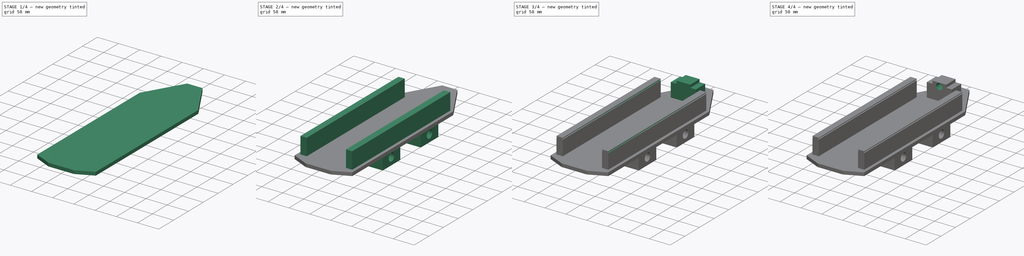
[diagram: build sequence overview — one tinted view per stage of 4, left to right]
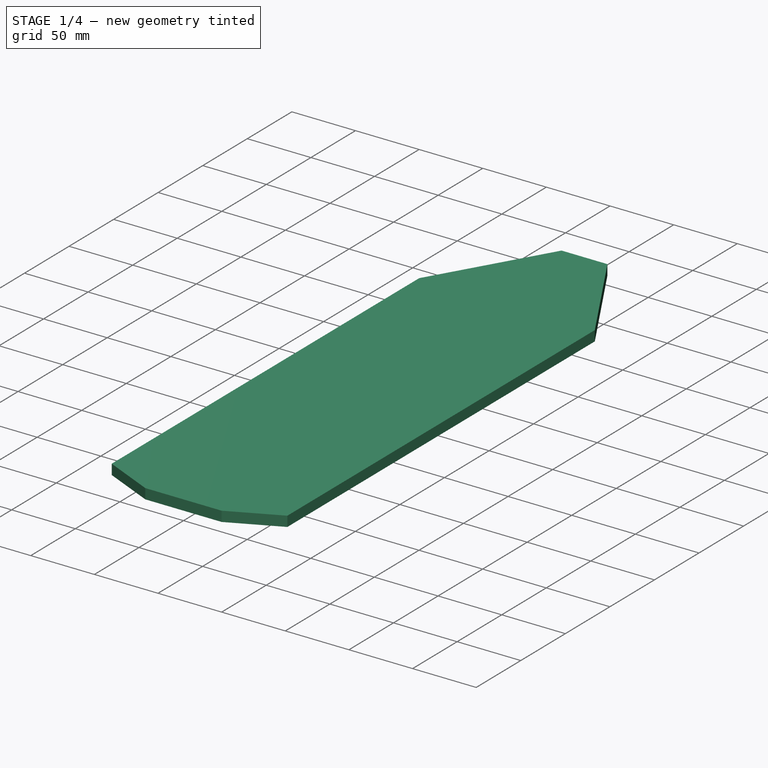
[diagram: stage 1 of 4 — iso view after this stage's code; geometry added in this stage tinted green]
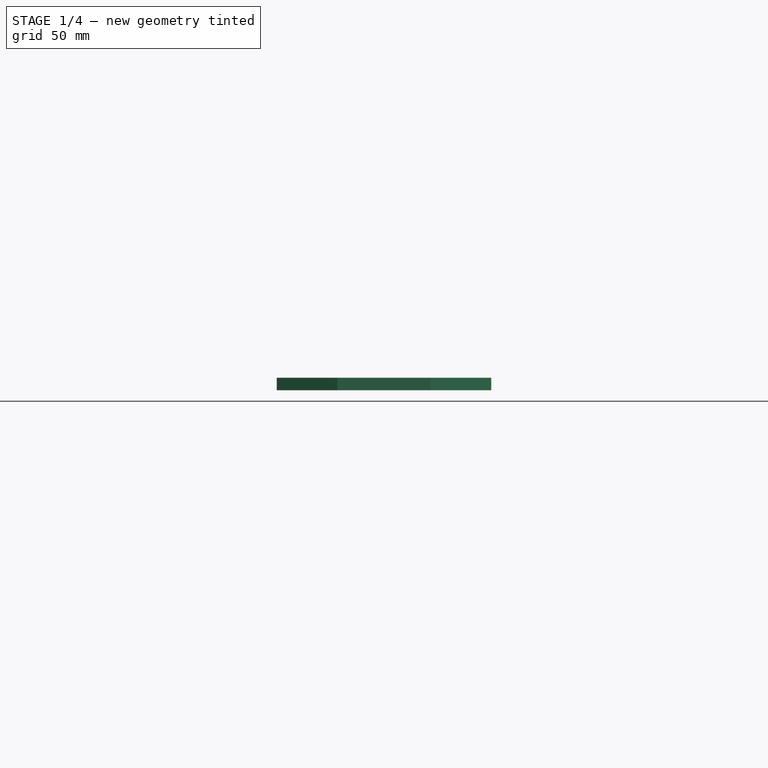
[diagram: stage 1 of 4 — front view after this stage's code; geometry added in this stage tinted green]
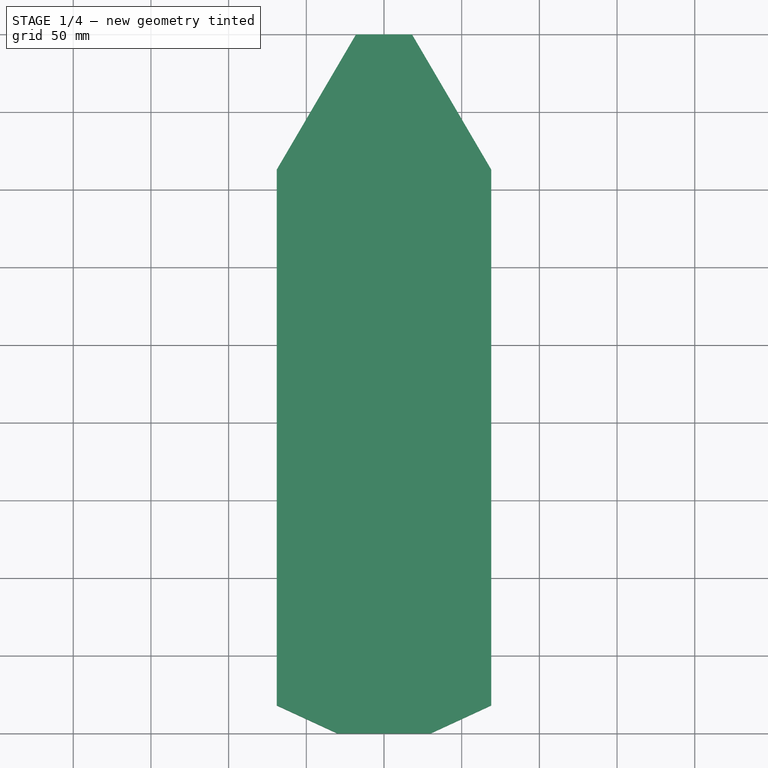
[diagram: stage 1 of 4 — top view after this stage's code; geometry added in this stage tinted green]
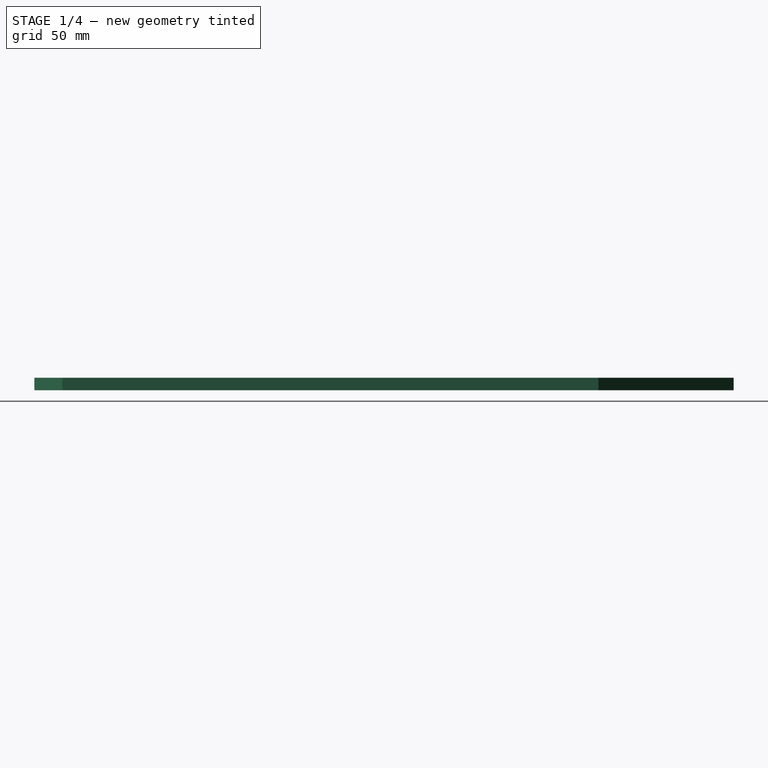
[diagram: stage 1 of 4 — right view after this stage's code; geometry added in this stage tinted green]
FCSTD DOCUMENT  (FreeCAD 0.21R33771 (Git))
Label: xy plate
License: All rights reserved
LicenseURL: http://en.wikipedia.org/wiki/All_rights_reserved
objects: Sketcher::SketchObject×10, PartDesign::Pocket×6, PartDesign::Pad×4, PartDesign::Body×1, App::MeasureDistance×1
note: 31 computed .brp shape members not serialized (recipe doc carries the construction recipe); baked Part::Feature solids carry a one-line shape summary decoded from their .brp

FEATURE [Sketcher::SketchObject] Sketch
  FullyConstrained = true
  MapMode = 5
  Support = -> [XY_Plane]
  sketch-geometry (4):
    g0: LineSegment StartX=-69 StartY=200 StartZ=0 EndX=69 EndY=200 EndZ=0
    g1: LineSegment StartX=69 StartY=200 StartZ=0 EndX=69 EndY=-250 EndZ=0
    g2: LineSegment StartX=69 StartY=-250 StartZ=0 EndX=-69 EndY=-250 EndZ=0
    g3: LineSegment StartX=-69 StartY=-250 StartZ=0 EndX=-69 EndY=200 EndZ=0
  constraints (12):
    c: Coincident(g0,g1)
    c: Coincident(g1,g2)
    c: Coincident(g2,g3)
    c: Coincident(g3,g0)
    c: Horizontal(g0)
    c: Horizontal(g2)
    c: Vertical(g1)
    c: Vertical(g3)
    c: DistanceX(g0,g0) = 138
    c: DistanceY(g3,g3) = 450
    c: Distance(g-1,g3) = 69
    c: Distance(g-1,g0) = 200
FEATURE [PartDesign::Pad] Pad
  Direction = (0,0,1)
  Length = 8
  Length2 = 10
  Profile = -> Sketch
  ReferenceAxis = -> Sketch [N_Axis]
  Type = 0
FEATURE [Sketcher::SketchObject] Sketch001
  ExternalGeometry = -> [Pad]
  FullyConstrained = true
  MapMode = 5
  Placement = pos=(0,0,8) rot=(0,0,1;0rad)
  Support = -> [Pad]
  sketch-geometry (12):
    g0: LineSegment StartX=-69 StartY=200 StartZ=0 EndX=-18 EndY=200 EndZ=0
    g1: LineSegment StartX=-18 StartY=200 StartZ=0 EndX=-69 EndY=113 EndZ=0
    g2: LineSegment StartX=-69 StartY=113 StartZ=0 EndX=-69 EndY=200 EndZ=0
    g3: LineSegment StartX=69 StartY=200 StartZ=0 EndX=18 EndY=200 EndZ=0
    g4: LineSegment StartX=18 StartY=200 StartZ=0 EndX=69 EndY=113 EndZ=0
    g5: LineSegment StartX=69 StartY=113 StartZ=0 EndX=69 EndY=200 EndZ=0
    g6: LineSegment StartX=-69 StartY=-232 StartZ=0 EndX=-30 EndY=-250 EndZ=0
    g7: LineSegment StartX=-30 StartY=-250 StartZ=0 EndX=-69 EndY=-250 EndZ=0
    g8: LineSegment StartX=-69 StartY=-250 StartZ=0 EndX=-69 EndY=-232 EndZ=0
    g9: LineSegment StartX=69 StartY=-232 StartZ=0 EndX=30 EndY=-250 EndZ=0
    g10: LineSegment StartX=30 StartY=-250 StartZ=0 EndX=69 EndY=-250 EndZ=0
    g11: LineSegment StartX=69 StartY=-250 StartZ=0 EndX=69 EndY=-232 EndZ=0
  constraints (32):
    c: Horizontal(g0)
    c: Coincident(g1,g0)
    c: Coincident(g2,g1)
    c: Coincident(g2,g0)
    c: Vertical(g2)
    c: Horizontal(g3)
    c: Coincident(g4,g3)
    c: Coincident(g5,g4)
    c: Coincident(g5,g3)
    c: Vertical(g5)
    c: Coincident(g7,g6)
    c: Horizontal(g7)
    c: Coincident(g8,g7)
    c: Coincident(g8,g6)
    c: Vertical(g8)
    c: Coincident(g10,g9)
    c: Horizontal(g10)
    c: Coincident(g11,g10)
    c: Coincident(g11,g9)
    c: Coincident(g0,g-4)
    c: DistanceX(g0,g0) = 51
    c: DistanceY(g2,g2) = 87
    c: DistanceY(g5,g5) = 87
    c: DistanceX(g3,g3) = 51
    c: Coincident(g3,g-5)
    c: Coincident(g-6,g7)
    c: Coincident(g10,g-6)
    c: PointOnObject(g9,g-5)
    c: DistanceX(g10,g10) = 39
    c: DistanceY(g11,g11) = 18
    c: DistanceX(g7,g7) = 39
    c: DistanceY(g8,g8) = 18
FEATURE [PartDesign::Pocket] Pocket
  BaseFeature = -> Pad
  Direction = (0,0,-1)
  Length = 10
  Length2 = 5
  Profile = -> Sketch001
  ReferenceAxis = -> Sketch001 [N_Axis]
  Type = 0
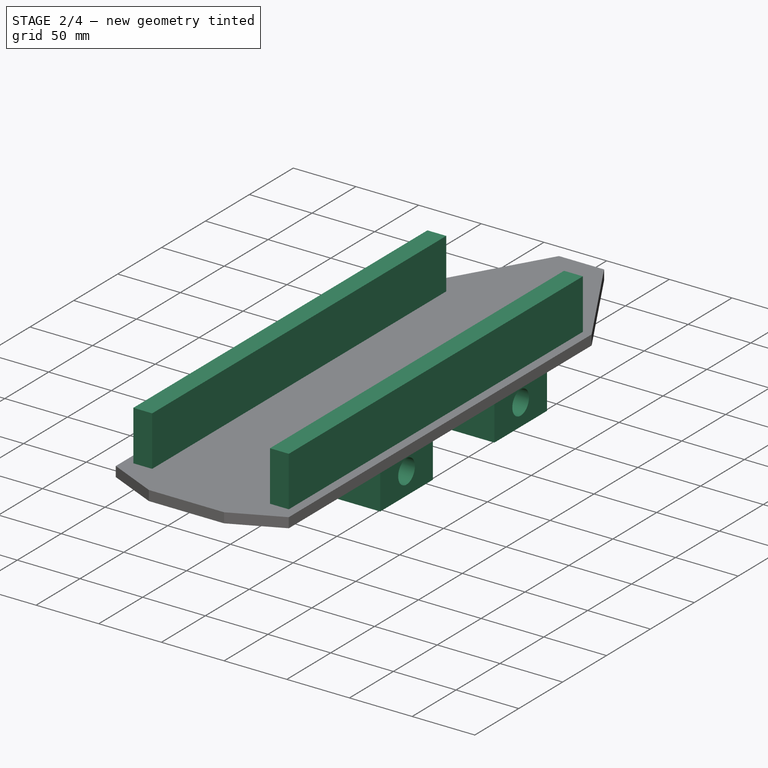
[diagram: stage 2 of 4 — iso view after this stage's code; geometry added in this stage tinted green]
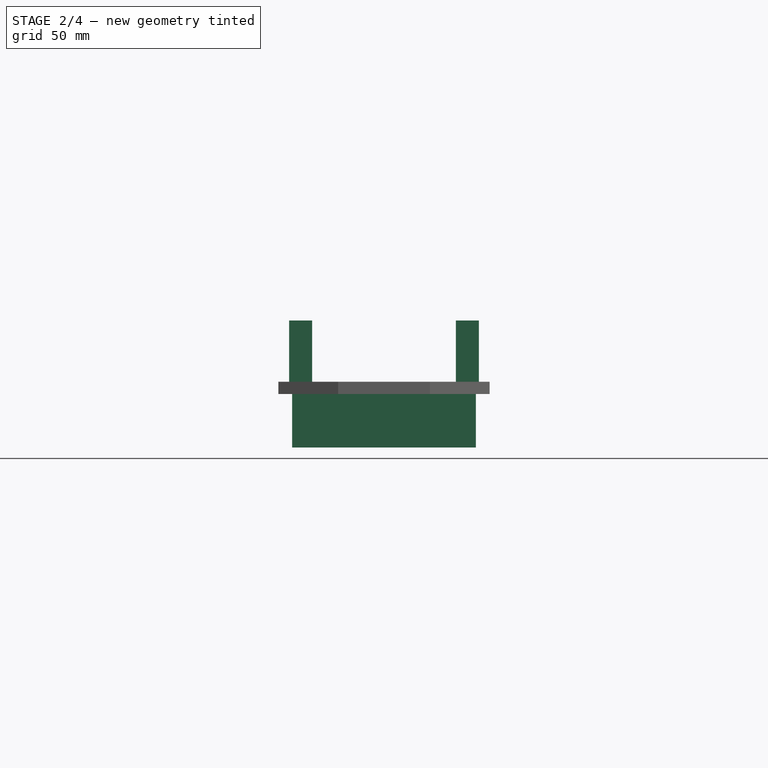
[diagram: stage 2 of 4 — front view after this stage's code; geometry added in this stage tinted green]
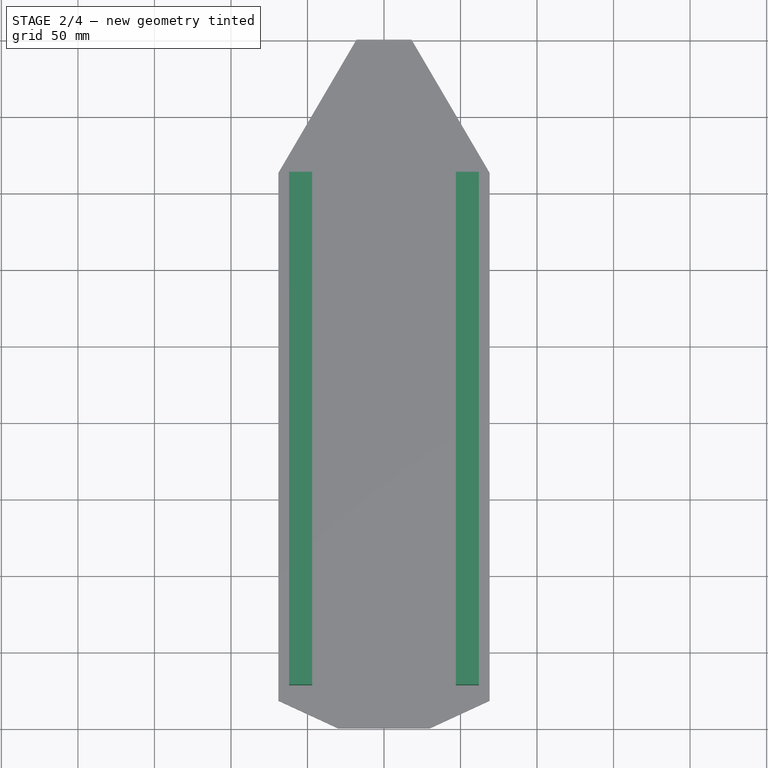
[diagram: stage 2 of 4 — top view after this stage's code; geometry added in this stage tinted green]
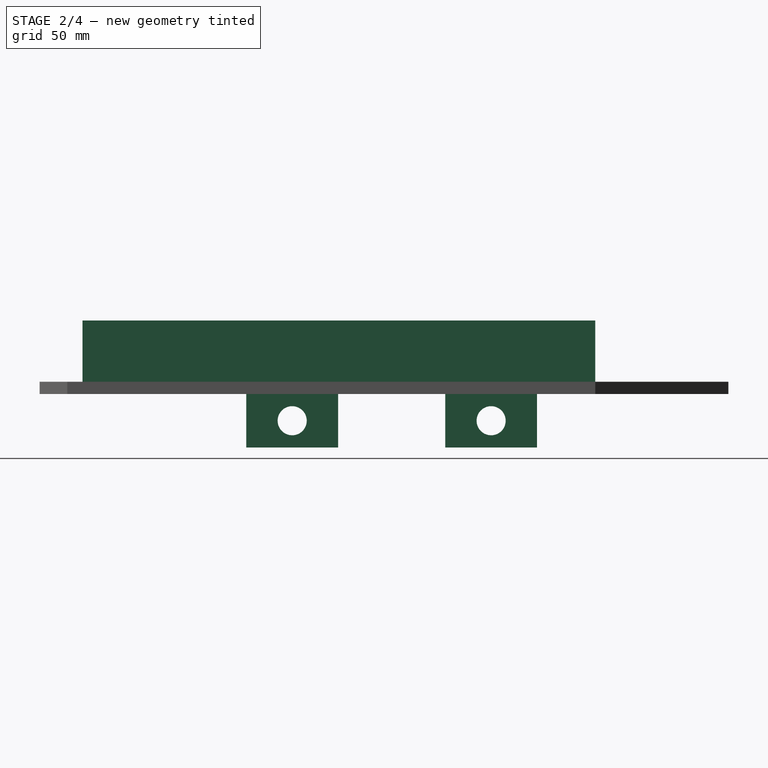
[diagram: stage 2 of 4 — right view after this stage's code; geometry added in this stage tinted green]
FEATURE [Sketcher::SketchObject] Sketch002
  FullyConstrained = true
  MapMode = 5
  Placement = pos=(0,0,0) rot=(1,0,0;3.14159rad)
  Support = -> [Pocket]
  sketch-geometry (8):
    g0: LineSegment StartX=60 StartY=-75 StartZ=0 EndX=-60 EndY=-75 EndZ=0
    g1: LineSegment StartX=-60 StartY=-75 StartZ=0 EndX=-60 EndY=-15 EndZ=0
    g2: LineSegment StartX=-60 StartY=-15 StartZ=0 EndX=60 EndY=-15 EndZ=0
    g3: LineSegment StartX=60 StartY=-15 StartZ=0 EndX=60 EndY=-75 EndZ=0
    g4: LineSegment StartX=60 StartY=55 StartZ=0 EndX=-60 EndY=55 EndZ=0
    g5: LineSegment StartX=-60 StartY=55 StartZ=0 EndX=-60 EndY=115 EndZ=0
    g6: LineSegment StartX=-60 StartY=115 StartZ=0 EndX=60 EndY=115 EndZ=0
    g7: LineSegment StartX=60 StartY=115 StartZ=0 EndX=60 EndY=55 EndZ=0
  constraints (24):
    c: Coincident(g0,g1)
    c: Coincident(g1,g2)
    c: Coincident(g2,g3)
    c: Coincident(g3,g0)
    c: Horizontal(g0)
    c: Horizontal(g2)
    c: Vertical(g1)
    c: Vertical(g3)
    c: Coincident(g4,g5)
    c: Coincident(g5,g6)
    c: Coincident(g6,g7)
    c: Coincident(g7,g4)
    c: Horizontal(g4)
    c: Horizontal(g6)
    c: Vertical(g5)
    c: Vertical(g7)
    c: DistanceX(g2,g2) = 120
    c: DistanceY(g3,g3) = 60
    c: DistanceY(g7,g7) = 60
    c: DistanceX(g4,g4) = 120
    c: Distance(g-1,g4) = 55
    c: Distance(g-1,g2) = 15
    c: Distance(g2,g-2) = 60
    c: Distance(g4,g-2) = 60
FEATURE [PartDesign::Pad] Pad001
  BaseFeature = -> Pocket
  Direction = (0,0,-1)
  Length = 35
  Length2 = 10
  Profile = -> Sketch002
  ReferenceAxis = -> Sketch002 [N_Axis]
  Type = 0
FEATURE [Sketcher::SketchObject] Sketch003
  ExternalGeometry = -> [Pad001]
  FullyConstrained = true
  MapMode = 5
  Placement = pos=(-60,0,0) rot=(0.57735,-0.57735,-0.57735;2.0944rad)
  Support = -> [Pad001]
  sketch-geometry (2):
    g0: Circle CenterX=-45 CenterY=-17.5 CenterZ=0 NormalX=0 NormalY=0 NormalZ=1 AngleXU=0 Radius=9.5
    g1: Circle CenterX=85 CenterY=-17.5 CenterZ=0 NormalX=0 NormalY=0 NormalZ=1 AngleXU=0 Radius=9.5
  constraints (6):
    c: Distance(g0,g-4) = 30
    c: Distance(g0,g-3) = 17.5
    c: Distance(g1,g-8) = 17.5
    c: Distance(g1,g-7) = 30
    c: Radius(g0) = 9.5
    c: Radius(g1) = 9.5
FEATURE [PartDesign::Pocket] Pocket001
  BaseFeature = -> Pad001
  Direction = (1,0,0)
  Length = 120
  Length2 = 5
  Profile = -> Sketch003
  ReferenceAxis = -> Sketch003 [N_Axis]
  Type = 0
FEATURE [Sketcher::SketchObject] Sketch004
  ExternalGeometry = -> [Pocket001]
  FullyConstrained = true
  MapMode = 5
  Placement = pos=(0,0,8) rot=(0,0,1;0rad)
  Support = -> [Pocket001]
  sketch-geometry (8):
    g0: LineSegment StartX=-62 StartY=113 StartZ=0 EndX=-47 EndY=113 EndZ=0
    g1: LineSegment StartX=-47 StartY=113 StartZ=0 EndX=-47 EndY=-222 EndZ=0
    g2: LineSegment StartX=-47 StartY=-222 StartZ=0 EndX=-62 EndY=-222 EndZ=0
    g3: LineSegment StartX=-62 StartY=-222 StartZ=0 EndX=-62 EndY=113 EndZ=0
    g4: LineSegment StartX=47 StartY=113 StartZ=0 EndX=62 EndY=113 EndZ=0
    g5: LineSegment StartX=62 StartY=113 StartZ=0 EndX=62 EndY=-222 EndZ=0
    g6: LineSegment StartX=62 StartY=-222 StartZ=0 EndX=47 EndY=-222 EndZ=0
    g7: LineSegment StartX=47 StartY=-222 StartZ=0 EndX=47 EndY=113 EndZ=0
  constraints (27):
    c: Distance(g-3) = 36
    c: Distance(g-3) = 36
    c: Coincident(g0,g1)
    c: Coincident(g1,g2)
    c: Coincident(g2,g3)
    c: Coincident(g3,g0)
    c: Horizontal(g0)
    c: Horizontal(g2)
    c: Vertical(g1)
    c: Vertical(g3)
    c: Coincident(g4,g5)
    c: Coincident(g5,g6)
    c: Coincident(g6,g7)
    c: Coincident(g7,g4)
    c: Horizontal(g4)
    c: Horizontal(g6)
    c: Vertical(g5)
    c: Vertical(g7)
    c: Distance(g0,g-4) = 7
    c: Distance(g-5,g5) = 7
    c: DistanceX(g0,g0) = 15
    c: DistanceX(g4,g4) = 15
    c: Distance(g-4,g0) = 7
    c: Distance(g4,g-5) = 7
    c: DistanceY(g1,g1) = 335
    c: DistanceY(g-4,g-4) = 345
    c: DistanceY(g7,g7) = 335
FEATURE [PartDesign::Pad] Pad002
  BaseFeature = -> Pocket001
  Direction = (0,0,1)
  Length = 40
  Length2 = 10
  Profile = -> Sketch004
  ReferenceAxis = -> Sketch004 [N_Axis]
  Type = 0
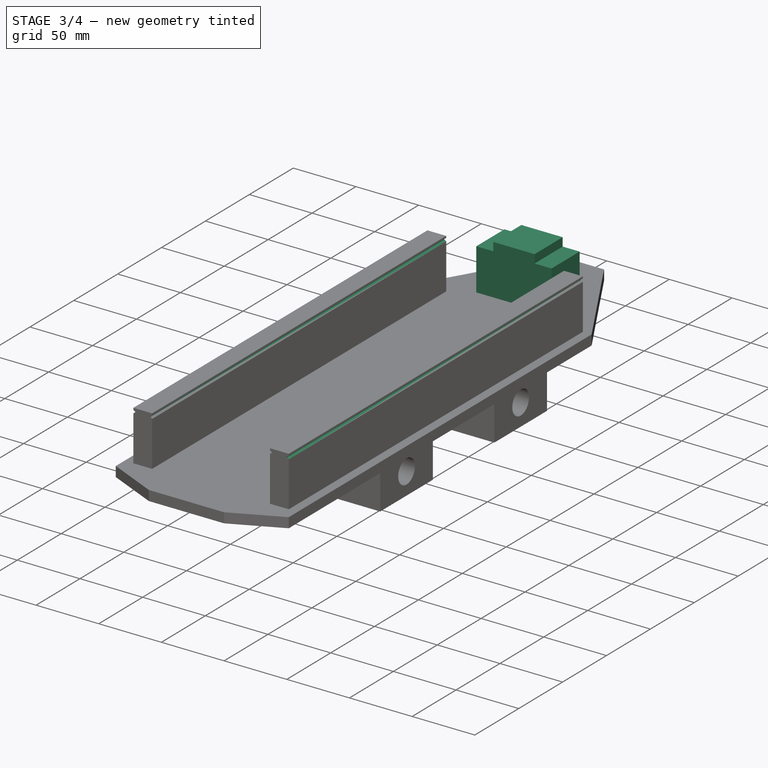
[diagram: stage 3 of 4 — iso view after this stage's code; geometry added in this stage tinted green]
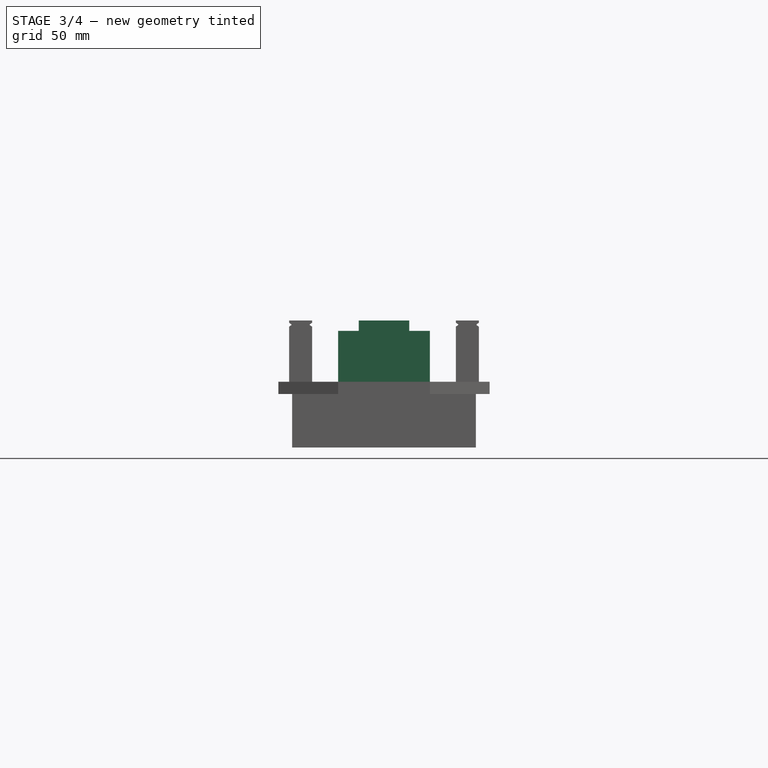
[diagram: stage 3 of 4 — front view after this stage's code; geometry added in this stage tinted green]
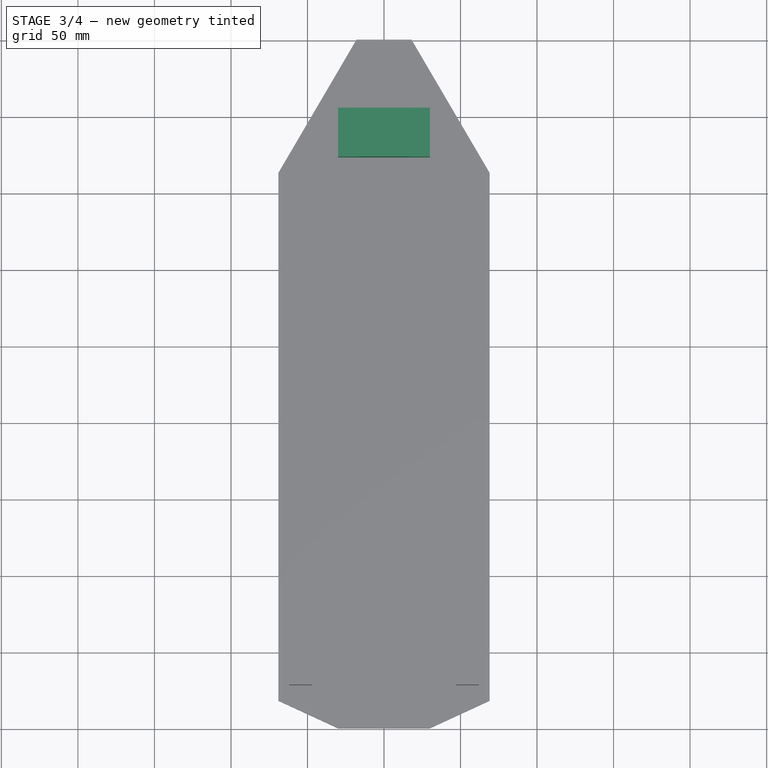
[diagram: stage 3 of 4 — top view after this stage's code; geometry added in this stage tinted green]
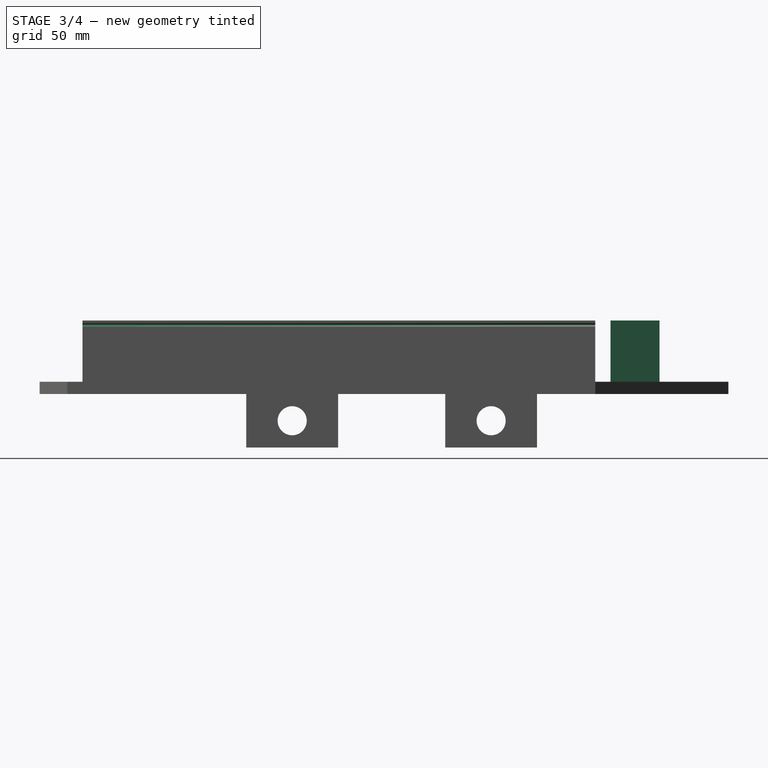
[diagram: stage 3 of 4 — right view after this stage's code; geometry added in this stage tinted green]
FEATURE [Sketcher::SketchObject] Sketch005
  ExternalGeometry = -> [Pad002]
  FullyConstrained = true
  MapMode = 5
  Placement = pos=(0,0,8) rot=(0,0,1;0rad)
  Support = -> [Pad002]
  sketch-geometry (4):
    g0: LineSegment StartX=-30 StartY=155 StartZ=0 EndX=30 EndY=155 EndZ=0
    g1: LineSegment StartX=30 StartY=155 StartZ=0 EndX=30 EndY=123 EndZ=0
    g2: LineSegment StartX=30 StartY=123 StartZ=0 EndX=-30 EndY=123 EndZ=0
    g3: LineSegment StartX=-30 StartY=123 StartZ=0 EndX=-30 EndY=155 EndZ=0
  constraints (12):
    c: Coincident(g0,g1)
    c: Coincident(g1,g2)
    c: Coincident(g2,g3)
    c: Coincident(g3,g0)
    c: Horizontal(g0)
    c: Horizontal(g2)
    c: Vertical(g1)
    c: Vertical(g3)
    c: DistanceX(g2,g2) = 60
    c: DistanceY(g3,g3) = 32
    c: Distance(g-3,g0) = 45
    c: Distance(g0,g-2) = 30
FEATURE [PartDesign::Pad] Pad003
  BaseFeature = -> Pad002
  Direction = (0,0,1)
  Length = 40
  Length2 = 10
  Profile = -> Sketch005
  ReferenceAxis = -> Sketch005 [N_Axis]
  Type = 0
FEATURE [Sketcher::SketchObject] Sketch006
  ExternalGeometry = -> [Pad003]
  FullyConstrained = true
  MapMode = 5
  Placement = pos=(0,113,0) rot=(0,0.707107,0.707107;3.14159rad)
  Support = -> [Pad003]
  sketch-geometry (16):
    g0: LineSegment StartX=-62 StartY=46.5 StartZ=0 EndX=-62 EndY=44 EndZ=0
    g1: LineSegment StartX=-62 StartY=46.5 StartZ=0 EndX=-60.5033 EndY=45.5 EndZ=0
    g2: LineSegment StartX=-60.5033 StartY=45.5 StartZ=0 EndX=-60.5033 EndY=45 EndZ=0
    g3: LineSegment StartX=-60.5033 StartY=45 StartZ=0 EndX=-62 EndY=44 EndZ=0
    g4: LineSegment StartX=-47 StartY=46.5 StartZ=0 EndX=-47 EndY=44 EndZ=0
    g5: LineSegment StartX=-47 StartY=44 StartZ=0 EndX=-48.4967 EndY=45 EndZ=0
    g6: LineSegment StartX=-48.4967 StartY=45 StartZ=0 EndX=-48.4967 EndY=45.5 EndZ=0
    g7: LineSegment StartX=-48.4967 StartY=45.5 StartZ=0 EndX=-47 EndY=46.5 EndZ=0
    g8: LineSegment StartX=47 StartY=46.5 StartZ=0 EndX=47 EndY=44 EndZ=0
    g9: LineSegment StartX=47 StartY=44 StartZ=0 EndX=48.4967 EndY=45 EndZ=0
    g10: LineSegment StartX=48.4967 StartY=45 StartZ=0 EndX=48.4967 EndY=45.5 EndZ=0
    g11: LineSegment StartX=48.4967 StartY=45.5 StartZ=0 EndX=47 EndY=46.5 EndZ=0
    g12: LineSegment StartX=62 StartY=46.5 StartZ=0 EndX=60.5033 EndY=45.5 EndZ=0
    g13: LineSegment StartX=60.5033 StartY=45.5 StartZ=0 EndX=60.5033 EndY=45 EndZ=0
    g14: LineSegment StartX=60.5033 StartY=45 StartZ=0 EndX=62 EndY=44 EndZ=0
    g15: LineSegment StartX=62 StartY=44 StartZ=0 EndX=62 EndY=46.5 EndZ=0
  constraints (48):
    c: Vertical(g0)
    c: Coincident(g1,g0)
    c: Coincident(g2,g1)
    c: Vertical(g2)
    c: Coincident(g3,g2)
    c: Coincident(g3,g0)
    c: Vertical(g4)
    c: Coincident(g5,g4)
    c: Coincident(g6,g5)
    c: Coincident(g7,g4)
    c: Vertical(g8)
    c: Coincident(g9,g8)
    c: Coincident(g10,g9)
    c: Vertical(g10)
    c: Coincident(g11,g10)
    c: Coincident(g11,g8)
    c: Coincident(g13,g12)
    c: Vertical(g13)
    c: Coincident(g14,g13)
    c: Coincident(g15,g14)
    c: Coincident(g15,g12)
    c: Vertical(g15)
    c: PointOnObject(g0,g-3)
    c: Distance(g-4,g0) = 1.5
    c: Distance(g0,g0) = 2.5
    c: Distance(g1,g2) = 0.5
    c: Distance(g1) = 1.8
    c: Distance(g3) = 1.8
    c: PointOnObject(g4,g-5)
    c: Distance(g-5,g4) = 1.5
    c: Distance(g4) = 2.5
    c: Distance(g6) = 0.5
    c: Vertical(g6)
    c: Distance(g7) = 1.8
    c: Coincident(g6,g7)
    c: Distance(g5) = 1.8
    c: PointOnObject(g8,g-6)
    c: Distance(g-7,g8) = 1.5
    c: Distance(g8) = 2.5
    c: Distance(g10) = 0.5
    c: Distance(g11) = 1.8
    c: Distance(g9) = 1.8
    c: PointOnObject(g12,g-8)
    c: Distance(g-8,g12) = 1.5
    c: Distance(g15) = 2.5
    c: Distance(g13) = 0.5
    c: Distance(g12) = 1.8
    c: Distance(g14) = 1.8
FEATURE [PartDesign::Pocket] Pocket002
  BaseFeature = -> Pad003
  Direction = (0,-1,2e-16)
  Length = 1000
  Length2 = 5
  Midplane = true
  Profile = -> Sketch006
  ReferenceAxis = -> Sketch006 [N_Axis]
  Type = 0
FEATURE [Sketcher::SketchObject] Sketch007
  ExternalGeometry = -> [Pocket002]
  FullyConstrained = true
  MapMode = 5
  Placement = pos=(0,155,0) rot=(0,0.707107,0.707107;3.14159rad)
  Support = -> [Pocket002]
  sketch-geometry (8):
    g0: LineSegment StartX=30 StartY=48 StartZ=0 EndX=16.5 EndY=48 EndZ=0
    g1: LineSegment StartX=16.5 StartY=48 StartZ=0 EndX=16.5 EndY=41.25 EndZ=0
    g2: LineSegment StartX=16.5 StartY=41.25 StartZ=0 EndX=30 EndY=41.25 EndZ=0
    g3: LineSegment StartX=30 StartY=41.25 StartZ=0 EndX=30 EndY=48 EndZ=0
    g4: LineSegment StartX=-30 StartY=48 StartZ=0 EndX=-16.5 EndY=48 EndZ=0
    g5: LineSegment StartX=-16.5 StartY=48 StartZ=0 EndX=-16.5 EndY=41.25 EndZ=0
    g6: LineSegment StartX=-16.5 StartY=41.25 StartZ=0 EndX=-30 EndY=41.25 EndZ=0
    g7: LineSegment StartX=-30 StartY=41.25 StartZ=0 EndX=-30 EndY=48 EndZ=0
  constraints (25):
    c: Coincident(g0,g1)
    c: Coincident(g1,g2)
    c: Coincident(g2,g3)
    c: Coincident(g3,g0)
    c: Horizontal(g0)
    c: Horizontal(g2)
    c: Vertical(g1)
    c: Vertical(g3)
    c: Coincident(g0,g-4)
    c: Distance(g0) = 13.5
    c: Distance(g1) = 6.75
    c: Distance(g-3) = 40
    c: Distance(g-3) = 40
    c: Distance(g-3) = 40
    c: Coincident(g4,g5)
    c: Coincident(g5,g6)
    c: Coincident(g6,g7)
    c: Coincident(g7,g4)
    c: Horizontal(g4)
    c: Horizontal(g6)
    c: Vertical(g5)
    c: Vertical(g7)
    c: Coincident(g4,g-3)
    c: Distance(g4) = 13.5
    c: Distance(g5) = 6.75
FEATURE [PartDesign::Pocket] Pocket003
  BaseFeature = -> Pocket002
  Direction = (0,-1,2e-16)
  Length = 500
  Length2 = 5
  Profile = -> Sketch007
  ReferenceAxis = -> Sketch007 [N_Axis]
  Type = 0
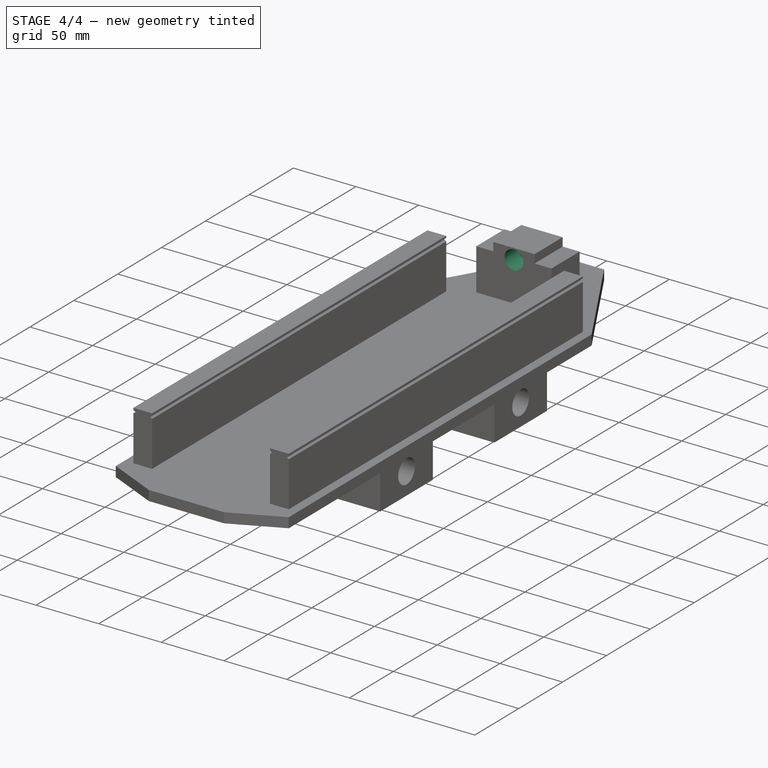
[diagram: stage 4 of 4 — iso view after this stage's code; geometry added in this stage tinted green]
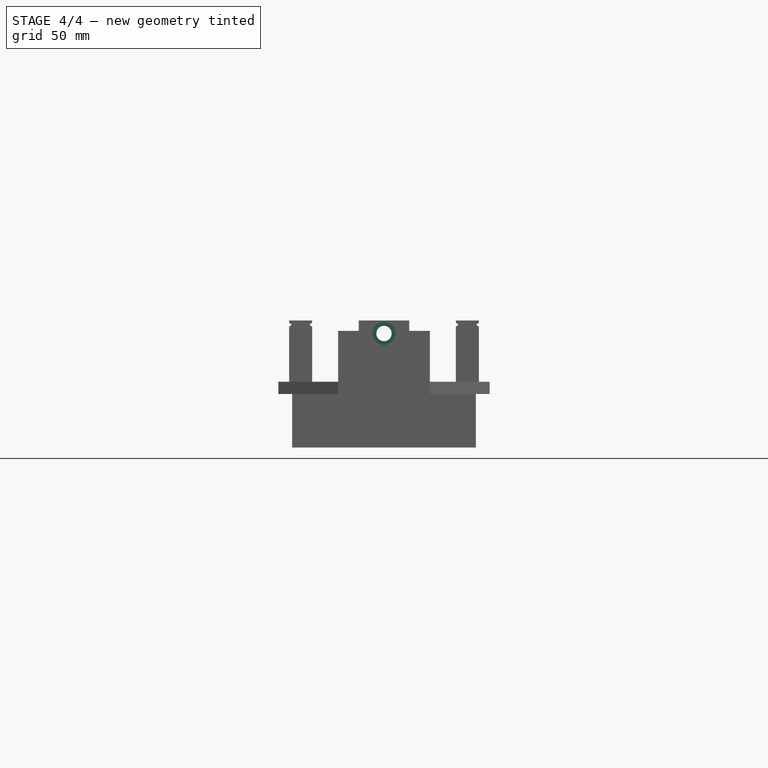
[diagram: stage 4 of 4 — front view after this stage's code; geometry added in this stage tinted green]
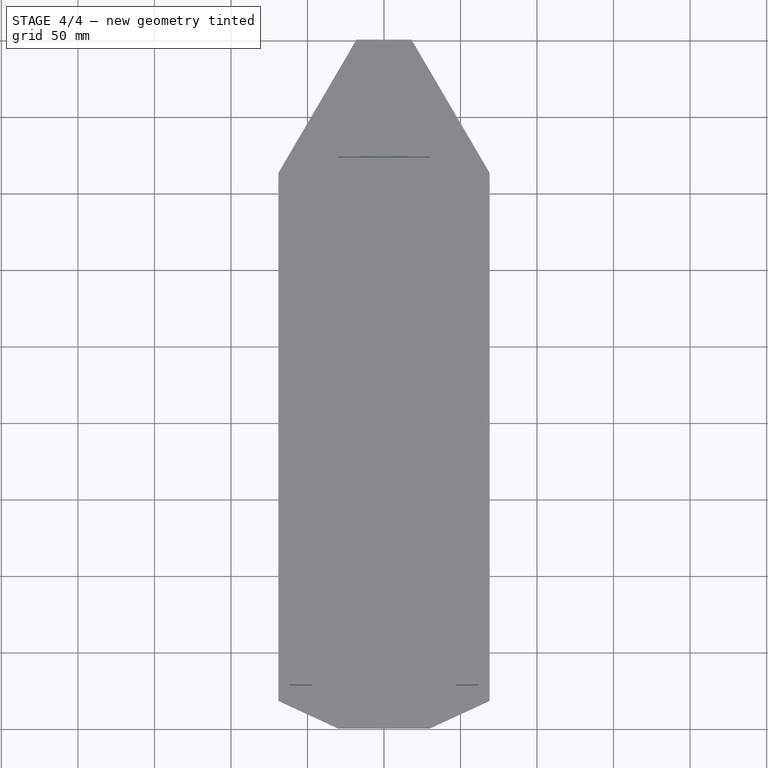
[diagram: stage 4 of 4 — top view after this stage's code; geometry added in this stage tinted green]
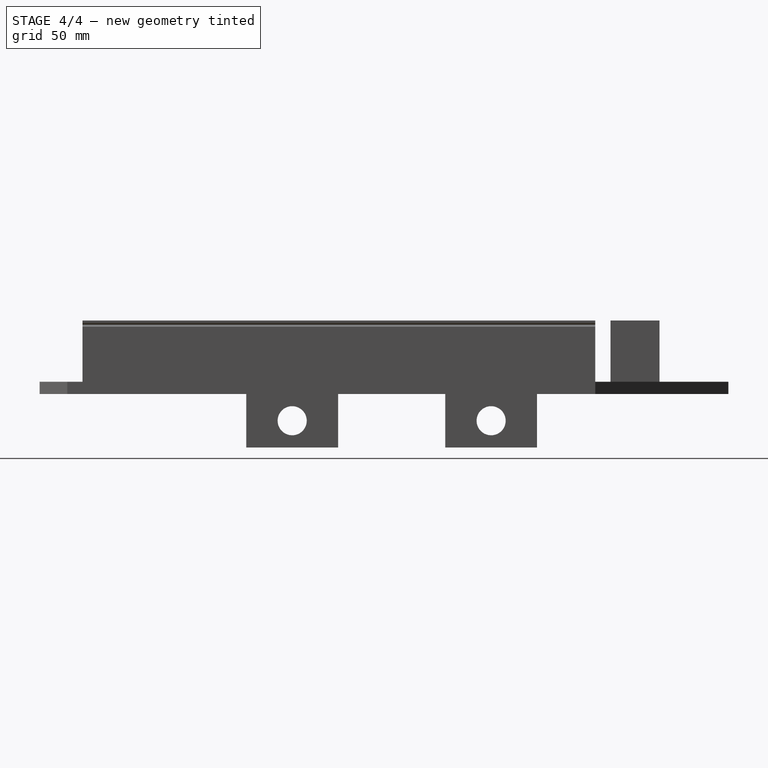
[diagram: stage 4 of 4 — right view after this stage's code; geometry added in this stage tinted green]
FEATURE [Sketcher::SketchObject] Sketch008
  ExternalGeometry = -> [Pocket003]
  FullyConstrained = true
  MapMode = 5
  Placement = pos=(0,155,0) rot=(0,0.707107,0.707107;3.14159rad)
  Support = -> [Pocket003]
  sketch-geometry (1):
    g0: Circle CenterX=0 CenterY=39.5 CenterZ=0 NormalX=0 NormalY=0 NormalZ=1 AngleXU=0 Radius=5
  constraints (4):
    c: PointOnObject(g0,g-2)
    c: Radius(g0) = 5
    c: Distance(g-3) = 33
    c: Distance(g0,g-3) = 8.5
FEATURE [PartDesign::Pocket] Pocket004
  BaseFeature = -> Pocket003
  Direction = (0,-1,2e-16)
  Length = 16
  Length2 = 5
  Profile = -> Sketch008
  ReferenceAxis = -> Sketch008 [N_Axis]
  Type = 0
FEATURE [Sketcher::SketchObject] Sketch009
  ExternalGeometry = -> [Pocket004]
  FullyConstrained = true
  MapMode = 5
  Placement = pos=(0,123,0) rot=(1,0,0;1.5708rad)
  Support = -> [Pocket004]
  sketch-geometry (1):
    g0: Circle CenterX=0 CenterY=39.5 CenterZ=0 NormalX=0 NormalY=0 NormalZ=1 AngleXU=0 Radius=7.5
  constraints (5):
    c: PointOnObject(g0,g-2)
    c: Radius(g0) = 7.5
    c: Distance(g-3) = 33
    c: Distance(g-3) = 33
    c: Distance(g0,g-3) = 8.5
FEATURE [PartDesign::Pocket] Pocket005
  BaseFeature = -> Pocket004
  Direction = (0,1,-2e-16)
  Length = 16
  Length2 = 5
  Profile = -> Sketch009
  ReferenceAxis = -> Sketch009 [N_Axis]
  Type = 0
FEATURE [PartDesign::Body] Body
  Group = -> [Sketch,Pad,Sketch001,Pocket,Sketch002,Pad001,Sketch003,Pocket001,Sketch004,Pad002,Sketch005,Pad003,Sketch006,Pocket002,Sketch007,Pocket003,Sketch008,Pocket004,Sketch009,Pocket005]
  Origin = -> Origin
  Tip = -> Pocket005
FEATURE [App::MeasureDistance] Distance  label="Distance: 39.96 mm"
  Distance = 39.9565
  P1 = (-54.2601,-222,8.04397)
  P2 = (-54.458,-222,48)
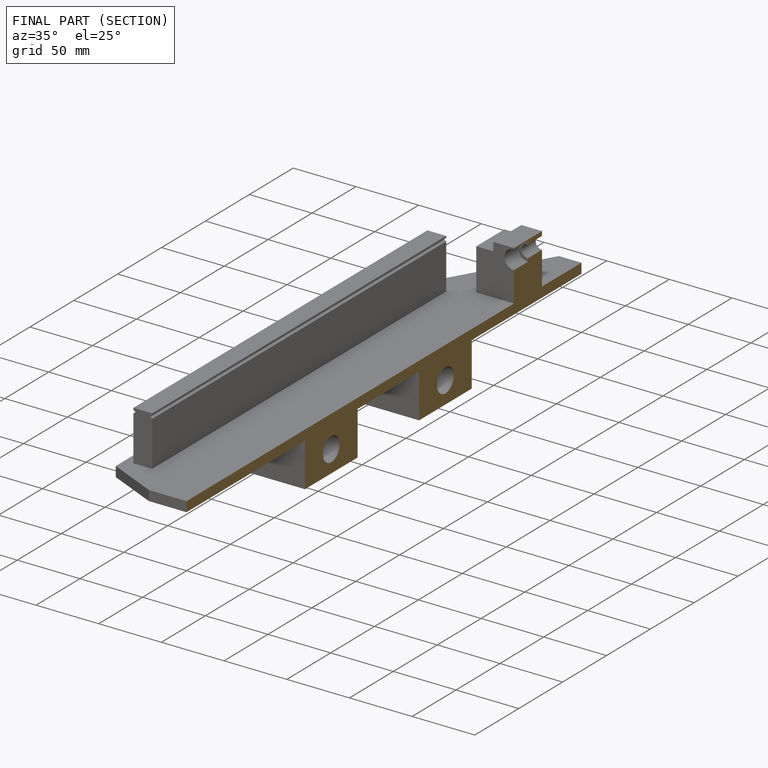
[diagram: finished part — half-section view (interior)]
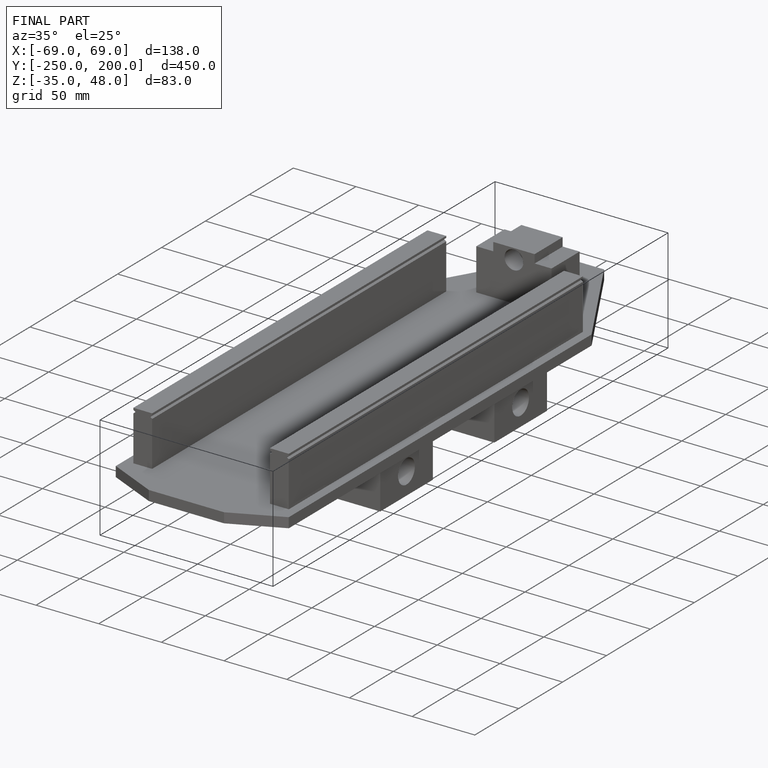
[diagram: finished part — iso view with bounding-box wireframe]
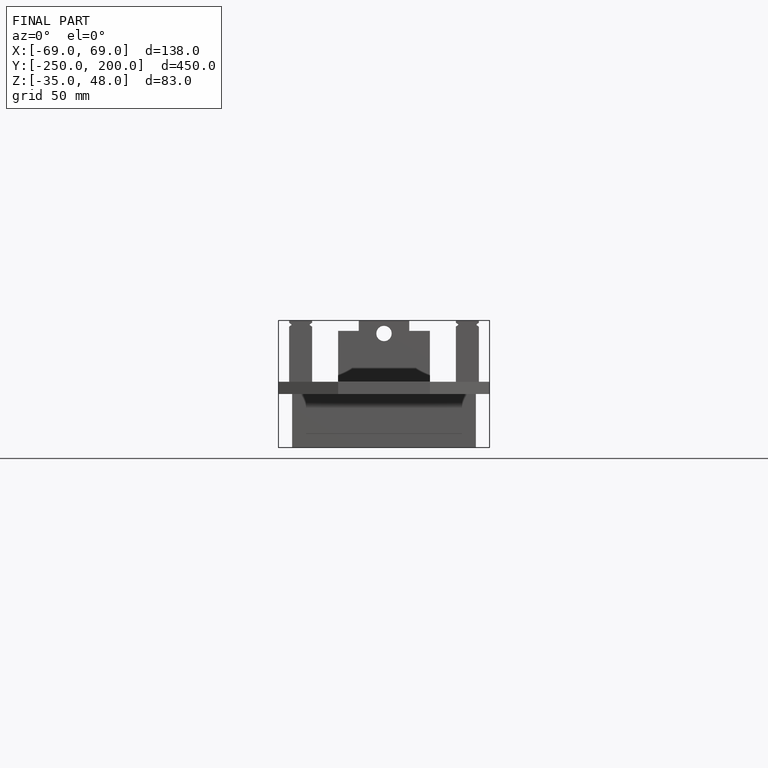
[diagram: finished part — front view with bounding-box wireframe]
